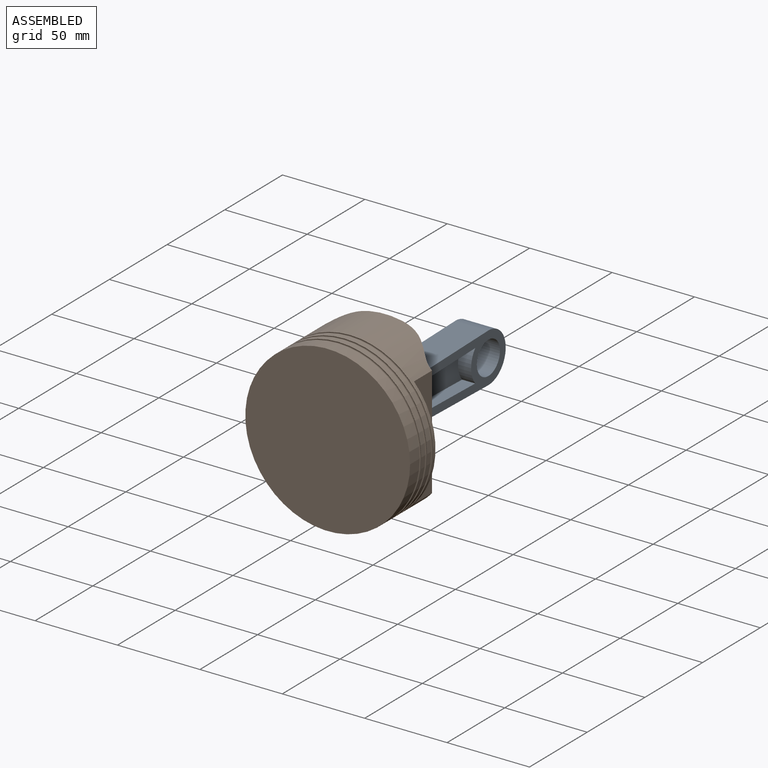
[diagram: assembled view]
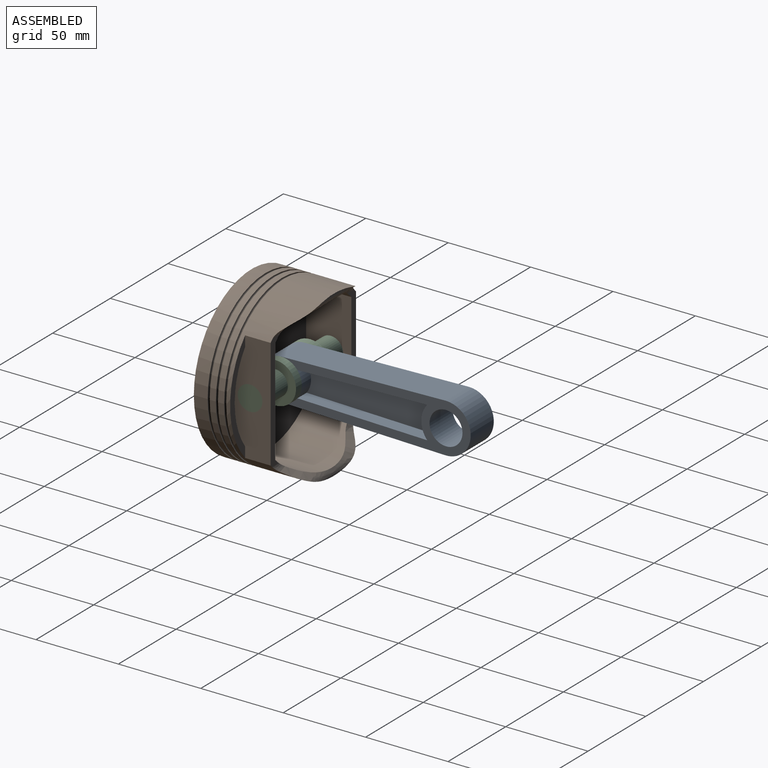
[diagram: assembled view, second angle]
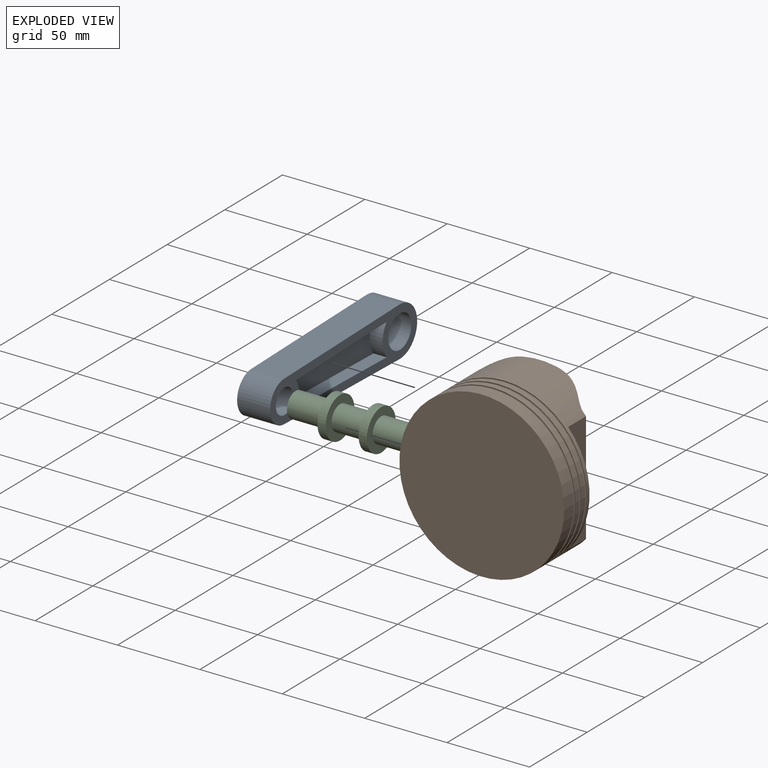
[diagram: exploded view]
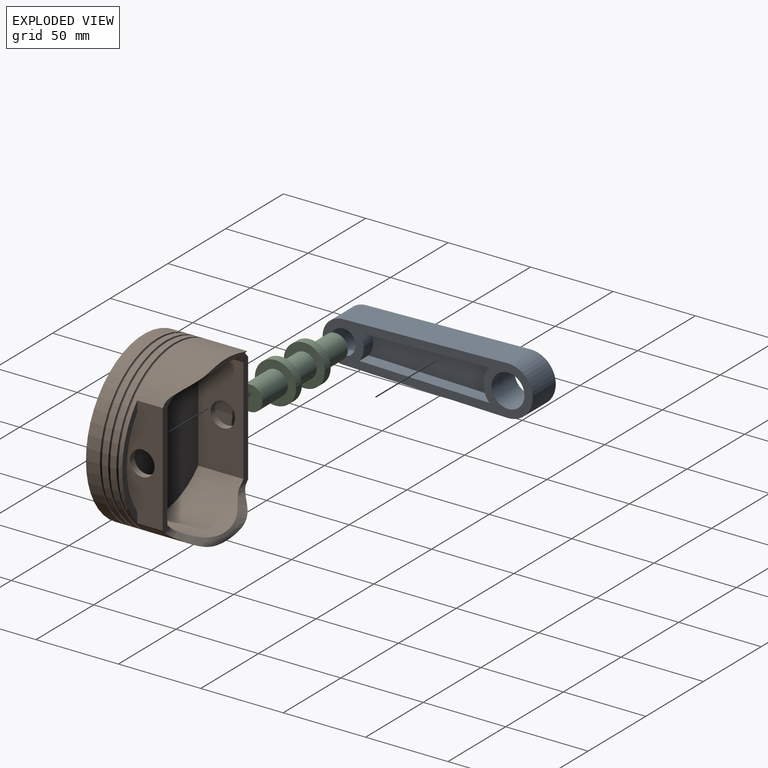
[diagram: exploded view, second angle]
ASSEMBLY  parts=3 mates=2
PART A: 18 faces, bbox 20x127.5x30 mm
  f0: plane 78.76x8mm, normal (0,0.03,1), area 630.3mm2, adj f2,f3,f15,f17
  f1: plane 78.76x8mm, normal (0,0.03,-1), area 630.3mm2, adj f2,f3,f15,f17
  f2: cylinder r=12.5mm len=15.49mm, axis (-1,0,0), area 133.7mm2, adj f0,f1,f15,f17
  f3: cylinder r=15mm len=19.43mm, axis (-1,0,0), area 169.1mm2, adj f0,f1,f15,f17
  f4: cylinder r=12.5mm len=25mm, axis (-1,0,0), area 785.4mm2, adj f5,f10,f14,f15
  f5: plane 100x20mm, normal (0,-0.02,-1), area 2000.6mm2, adj f4,f6,f14,f15
  f6: cylinder r=15mm len=30mm, axis (-1,0,0), area 942.5mm2, adj f5,f10,f14,f15
  f7: plane 78.76x8mm, normal (0,0.03,1), area 630.3mm2, adj f8,f12,f14,f16
  f8: cylinder r=12.5mm len=15.49mm, axis (-1,0,0), area 133.7mm2, adj f7,f9,f14,f16
  f9: plane 78.76x8mm, normal (0,0.03,-1), area 630.3mm2, adj f8,f12,f14,f16
  f10: plane 100x20mm, normal (0,-0.02,1), area 2000.6mm2, adj f4,f6,f14,f15
  f11: cylinder r=7.5mm len=20mm, axis (-1,0,0), area 942.5mm2, adj f14,f15
  f12: cylinder r=15mm len=19.43mm, axis (-1,0,0), area 169.1mm2, adj f7,f9,f14,f16
  f13: cylinder r=10mm len=20mm, axis (-1,0,0), area 1256.6mm2, adj f14,f15
  f14: plane 127.5x30mm, normal (1,0,0), area 1558.5mm2, adj f4,f5,f6,f7,f8,f9,f10,f11
  f15: plane 127.5x30mm, normal (-1,0,0), area 1558.5mm2, adj f0,f1,f2,f3,f4,f5,f6,f10
  f16: plane 78.76x19.43mm, normal (1,0,0), area 1299.4mm2, adj f7,f8,f9,f12
  f17: plane 78.76x19.43mm, normal (-1,0,0), area 1299.4mm2, adj f0,f1,f2,f3
PART B: 29 faces, bbox 108.8x50x108.8 mm
  f0: cylinder r=50mm len=100mm, axis (0,-1,0), area 4722.8mm2, adj f1,f2,f3,f4,f8,f10,f11,f18
  f1: plane 67.26x27.5mm, normal (1,0,0), area 1521.8mm2, adj f0,f6,f9,f10,f18,f23
  f2: plane 67.26x27.5mm, normal (-1,0,0), area 1521.8mm2, adj f0,f5,f7,f8,f19,f22
  f3: plane 19.9x1mm, normal (0,1,0), area 13.3mm2, adj f0,f21
  f4: plane 19.9x1mm, normal (0,1,0), area 13.3mm2, adj f0,f20
  f5: plane 54.66x9mm, normal (0,1,0), area 335mm2, adj f2,f7
  f6: plane 54.66x9mm, normal (0,1,0), area 335mm2, adj f1,f9
  f7: cylinder r=46mm len=54.66mm, axis (0,-1,0), area 702.4mm2, adj f2,f5,f8
  f8: plane 67.26x13mm, normal (0,1,0), area 265mm2, adj f0,f2,f7
  f9: cylinder r=46mm len=54.66mm, axis (0,-1,0), area 702.4mm2, adj f1,f6,f10
  f10: plane 67.26x13mm, normal (0,1,0), area 265mm2, adj f0,f1,f9
  f11: torus R=49.25mm, axis (0,1,0), area 1488.7mm2, adj f0,f12
  f12: cylinder r=50mm len=100mm, axis (0,-1,0), area 1155.2mm2, adj f11,f13
  f13: torus R=49.25mm, axis (0,1,0), area 1488.7mm2, adj f12,f14
  f14: cylinder r=50mm len=100mm, axis (0,-1,0), area 1155.2mm2, adj f13,f15
  f15: torus R=49.25mm, axis (0,1,0), area 1488.7mm2, adj f14,f17
  f16: plane 100x100mm, normal (0,-1,0), area 7854mm2, adj f17
  f17: cylinder r=50mm len=100mm, axis (0,-1,0), area 2619.6mm2, adj f15,f16
  f18: plane 70x7.15mm, normal (0,1,0), area 287.3mm2, adj f0,f1,f20,f21,f26,f27,f28
  f19: plane 70x7.15mm, normal (0,1,0), area 287.3mm2, adj f0,f2,f20,f21,f25,f26,f27
  f20: extruded ~71.41x14mm, area 377.2mm2, adj f0,f4,f18,f19,f26
  f21: extruded ~71.41x14mm, area 377.2mm2, adj f0,f3,f18,f19,f27
  f22: cylinder r=7.5mm len=15mm, axis (1,0,0), area 188.5mm2, adj f2,f25
  f23: cylinder r=7.5mm len=15mm, axis (1,0,0), area 188.5mm2, adj f1,f28
  f24: plane 92x66mm, normal (0,1,0), area 5500.9mm2, adj f25,f26,f27,f28
  f25: plane 64.09x27.5mm, normal (1,0,0), area 1585.9mm2, adj f19,f22,f24,f26,f27
  f26: cylinder r=46mm len=66mm, axis (0,-1,0), area 2463mm2, adj f18,f19,f20,f24,f25,f28
  f27: cylinder r=46mm len=66mm, axis (0,-1,0), area 2463mm2, adj f18,f19,f21,f24,f25,f28
  f28: plane 64.09x27.5mm, normal (-1,0,0), area 1585.9mm2, adj f18,f23,f24,f26,f27
PART C: 11 faces, bbox 74x25x25 mm
  f0: cylinder r=7.5mm len=22mm, axis (1,0,0), area 1036.7mm2, adj f1,f2
  f1: plane 15x15mm, normal (1,0,0), area 176.7mm2, adj f0
  f2: plane 25x25mm, normal (1,0,0), area 314.2mm2, adj f0,f3
  f3: cylinder r=12.5mm len=25mm, axis (-1,0,0), area 392.7mm2, adj f2,f4
  f4: plane 25x25mm, normal (-1,0,0), area 314.2mm2, adj f3,f5
  f5: cylinder r=7.5mm len=20mm, axis (1,0,0), area 942.5mm2, adj f4,f8
  f6: cylinder r=12.5mm len=25mm, axis (-1,0,0), area 392.7mm2, adj f7,f8
  f7: plane 25x25mm, normal (-1,0,0), area 314.2mm2, adj f6,f10
  f8: plane 25x25mm, normal (1,0,0), area 314.2mm2, adj f5,f6
  f9: plane 15x15mm, normal (-1,0,0), area 176.7mm2, adj f10
  f10: cylinder r=7.5mm len=22mm, axis (1,0,0), area 1036.7mm2, adj f7,f9
PLACE A t=(-87.59,-135.53,5.9)mm
PLACE B t=(-87.59,-135.53,5.9)mm
PLACE C t=(-87.59,-135.53,5.9)mm
MATE revolute B.f22 <-> C.f0  axis (1,0,0) through (-50.59,-110.53,5.9)mm
MATE revolute C.f0 <-> A.f2  axis (1,0,0) through (-87.59,-110.53,5.9)mm
